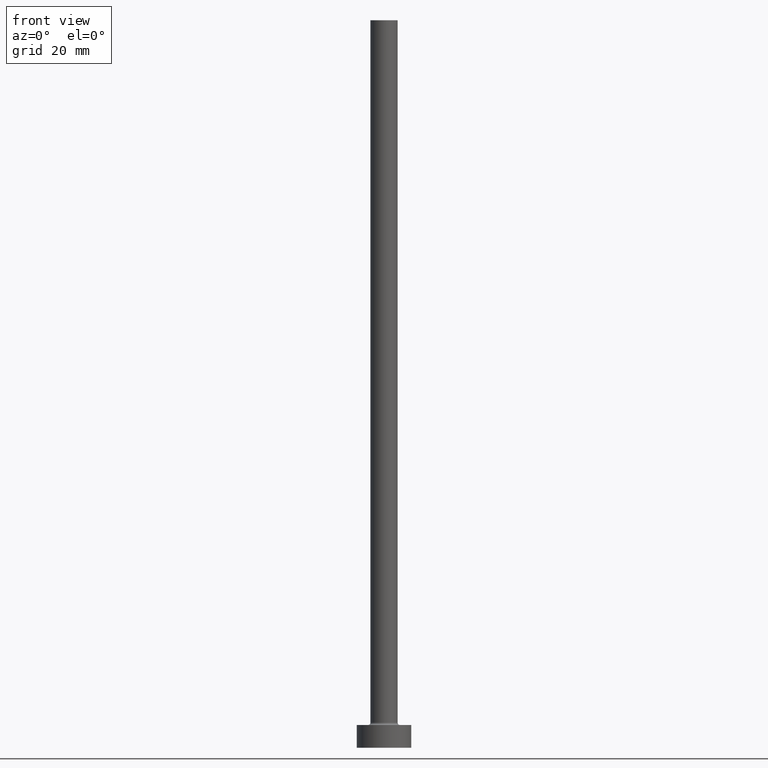
[diagram: clean part render]
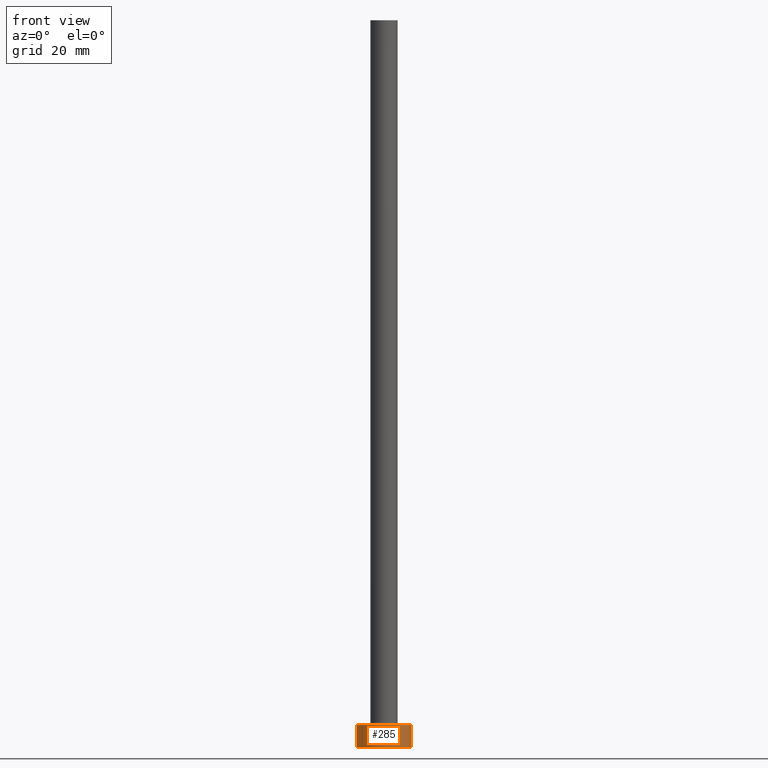
[diagram: same view with one face highlighted and labeled with its STEP entity id]
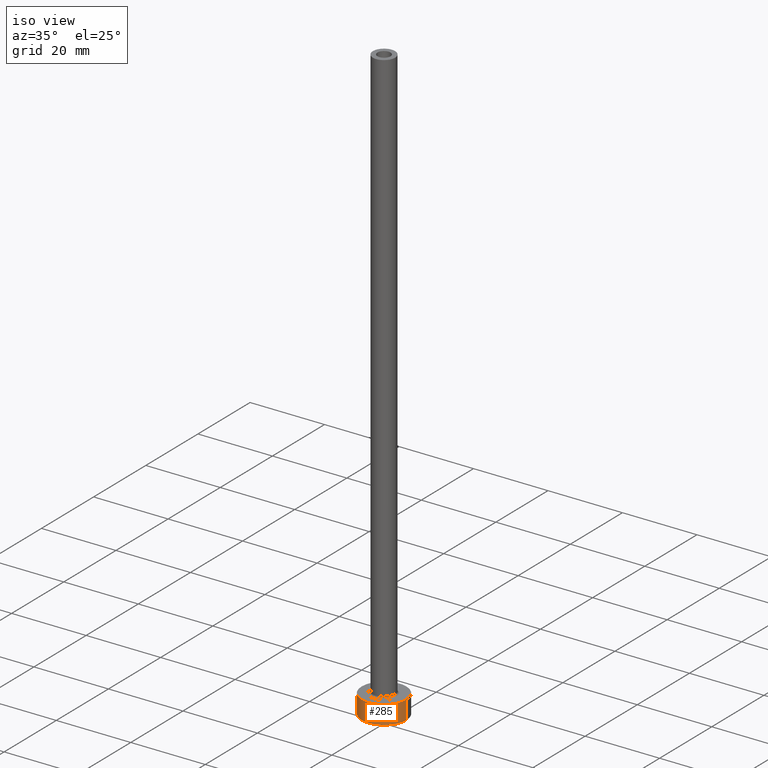
[diagram: same view with one face highlighted and labeled with its STEP entity id]
A machine part, front view. The second image highlights one B-rep face of the part: STEP entity #285.
A second angle (iso view) of the same face is appended — the face is thin or edge-on in the first view.
In plain terms, the highlighted cylindrical surface (edge-blend (fillet) strip) has radius 6 mm, axis along (-0, -0, -1).
Its self-contained STEP definition (entity closure, byte-faithful):
#48 = DIRECTION ( 'NONE',  ( -0.000000000000000000, -0.000000000000000000, -1.000000000000000000 ) ) ;
#74 = AXIS2_PLACEMENT_3D ( 'NONE', #355, #246, #387 ) ;
#77 = LINE ( 'NONE', #407, #298 ) ;
#84 = DIRECTION ( 'NONE',  ( -0.000000000000000000, -0.000000000000000000, -1.000000000000000000 ) ) ;
#91 = AXIS2_PLACEMENT_3D ( 'NONE', #161, #301, #411 ) ;
#96 = CARTESIAN_POINT ( 'NONE',  ( 6.000000000000000888, 7.347880794884120722E-16, 0.000000000000000000 ) ) ;
#112 = EDGE_CURVE ( 'NONE', #356, #133, #77, .T. ) ;
#120 = CARTESIAN_POINT ( 'NONE',  ( 6.000000000000000888, 7.347880794884120722E-16, 5.000000000000000000 ) ) ;
#121 = VECTOR ( 'NONE', #48, 1000.000000000000000 ) ;
#129 = EDGE_CURVE ( 'NONE', #213, #200, #326, .T. ) ;
#133 = VERTEX_POINT ( 'NONE', #199 ) ;
#136 = CARTESIAN_POINT ( 'NONE',  ( -6.000000000000000888, 0.000000000000000000, 5.000000000000000000 ) ) ;
#161 = CARTESIAN_POINT ( 'NONE',  ( 0.000000000000000000, 0.000000000000000000, 5.000000000000000000 ) ) ;
#162 = EDGE_LOOP ( 'NONE', ( #177, #280, #423, #377 ) ) ;
#165 = CARTESIAN_POINT ( 'NONE',  ( 6.000000000000000888, 7.347880794884120722E-16, 5.000000000000000000 ) ) ;
#177 = ORIENTED_EDGE ( 'NONE', *, *, #129, .F. ) ;
#188 = CIRCLE ( 'NONE', #74, 6.000000000000000888 ) ;
#199 = CARTESIAN_POINT ( 'NONE',  ( -6.000000000000000888, 0.000000000000000000, 0.000000000000000000 ) ) ;
#200 = VERTEX_POINT ( 'NONE', #96 ) ;
#213 = VERTEX_POINT ( 'NONE', #165 ) ;
#246 = DIRECTION ( 'NONE',  ( 0.000000000000000000, 0.000000000000000000, 1.000000000000000000 ) ) ;
#265 = AXIS2_PLACEMENT_3D ( 'NONE', #281, #421, #351 ) ;
#277 = EDGE_CURVE ( 'NONE', #356, #213, #290, .T. ) ;
#280 = ORIENTED_EDGE ( 'NONE', *, *, #277, .F. ) ;
#281 = CARTESIAN_POINT ( 'NONE',  ( 0.000000000000000000, 0.000000000000000000, 5.000000000000000000 ) ) ;
#285 = ADVANCED_FACE ( 'NONE', ( #445 ), #412, .T. ) ;
#290 = CIRCLE ( 'NONE', #91, 6.000000000000000888 ) ;
#298 = VECTOR ( 'NONE', #84, 1000.000000000000000 ) ;
#301 = DIRECTION ( 'NONE',  ( 0.000000000000000000, 0.000000000000000000, 1.000000000000000000 ) ) ;
#326 = LINE ( 'NONE', #120, #121 ) ;
#351 = DIRECTION ( 'NONE',  ( -1.000000000000000000, 0.000000000000000000, 0.000000000000000000 ) ) ;
#355 = CARTESIAN_POINT ( 'NONE',  ( 0.000000000000000000, 0.000000000000000000, 0.000000000000000000 ) ) ;
#356 = VERTEX_POINT ( 'NONE', #136 ) ;
#377 = ORIENTED_EDGE ( 'NONE', *, *, #380, .T. ) ;
#380 = EDGE_CURVE ( 'NONE', #133, #200, #188, .T. ) ;
#387 = DIRECTION ( 'NONE',  ( 1.000000000000000000, 0.000000000000000000, 0.000000000000000000 ) ) ;
#407 = CARTESIAN_POINT ( 'NONE',  ( -6.000000000000000888, 0.000000000000000000, 5.000000000000000000 ) ) ;
#411 = DIRECTION ( 'NONE',  ( 1.000000000000000000, 0.000000000000000000, 0.000000000000000000 ) ) ;
#412 = CYLINDRICAL_SURFACE ( 'NONE', #265, 6.000000000000000888 ) ;
#421 = DIRECTION ( 'NONE',  ( -0.000000000000000000, -0.000000000000000000, -1.000000000000000000 ) ) ;
#423 = ORIENTED_EDGE ( 'NONE', *, *, #112, .T. ) ;
#445 = FACE_OUTER_BOUND ( 'NONE', #162, .T. ) ;